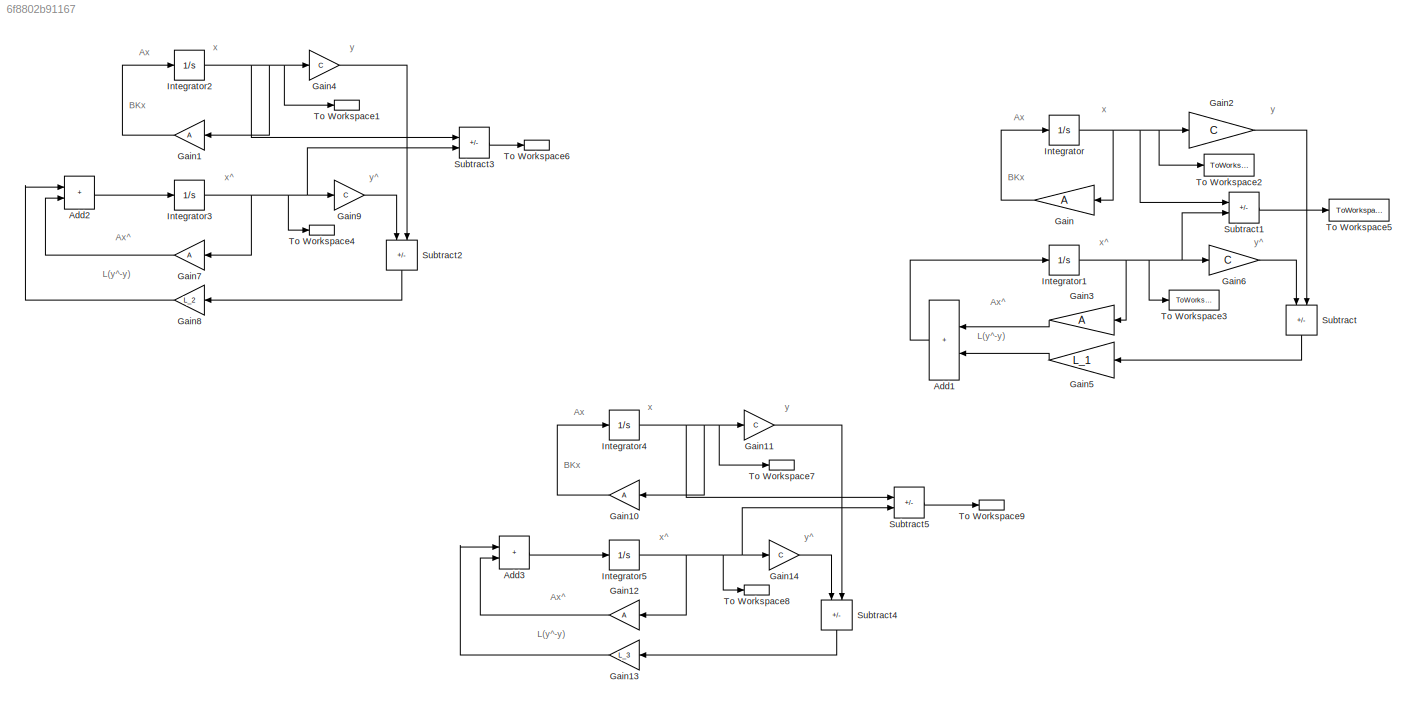
MODEL slx_6f8802b91167
KIND model
CONFIG AbsTol = auto
CONFIG EnableMultiTasking = off
CONFIG FixedStep = auto
CONFIG MaxStep = auto
CONFIG MinStep = auto
CONFIG RelTol = 1e-3
CONFIG SampleTimeConstraint = Unconstrained
CONFIG SolverName = VariableStepAuto
CONFIG StartTime = 0.0
CONFIG StopTime = 5
BLOCK [Sum] Add1
  IconShape = rectangular
  NameLocation = top
  Ports = [2, 1]
BLOCK [Sum] Add2
  IconShape = rectangular
  Ports = [2, 1]
BLOCK [Sum] Add3
  IconShape = rectangular
  Ports = [2, 1]
BLOCK [Gain] Gain
  Gain = A
  Multiplication = Matrix(K*u) (u vector)
  NameLocation = top
BLOCK [Gain] Gain1
  Gain = A
  Multiplication = Matrix(K*u) (u vector)
  NameLocation = top
BLOCK [Gain] Gain10
  Gain = A
  Multiplication = Matrix(K*u) (u vector)
  NameLocation = top
BLOCK [Gain] Gain11
  Gain = C
  Multiplication = Matrix(K*u) (u vector)
BLOCK [Gain] Gain12
  Gain = A
  Multiplication = Matrix(K*u) (u vector)
  NameLocation = top
BLOCK [Gain] Gain13
  Gain = L_3
  Multiplication = Matrix(K*u) (u vector)
  NameLocation = top
BLOCK [Gain] Gain14
  Gain = C
  Multiplication = Matrix(K*u) (u vector)
BLOCK [Gain] Gain2
  Gain = C
  Multiplication = Matrix(K*u) (u vector)
BLOCK [Gain] Gain3
  Gain = A
  Multiplication = Matrix(K*u) (u vector)
  NameLocation = top
BLOCK [Gain] Gain4
  Gain = C
  Multiplication = Matrix(K*u) (u vector)
BLOCK [Gain] Gain5
  Gain = L_1
  Multiplication = Matrix(K*u) (u vector)
  NameLocation = top
BLOCK [Gain] Gain6
  Gain = C
  Multiplication = Matrix(K*u) (u vector)
BLOCK [Gain] Gain7
  Gain = A
  Multiplication = Matrix(K*u) (u vector)
  NameLocation = top
BLOCK [Gain] Gain8
  Gain = L_2
  Multiplication = Matrix(K*u) (u vector)
  NameLocation = top
BLOCK [Gain] Gain9
  Gain = C
  Multiplication = Matrix(K*u) (u vector)
BLOCK [Integrator] Integrator
  InitialCondition = x0
  Ports = [1, 1]
BLOCK [Integrator] Integrator1
  InitialCondition = x_0
  Ports = [1, 1]
BLOCK [Integrator] Integrator2
  InitialCondition = x0
  Ports = [1, 1]
BLOCK [Integrator] Integrator3
  InitialCondition = x_0
  Ports = [1, 1]
BLOCK [Integrator] Integrator4
  InitialCondition = x0
  Ports = [1, 1]
BLOCK [Integrator] Integrator5
  InitialCondition = x_0
  Ports = [1, 1]
BLOCK [Sum] Subtract
  IconShape = rectangular
  Inputs = +-
  NameLocation = left
  Ports = [2, 1]
BLOCK [Sum] Subtract1
  IconShape = rectangular
  Inputs = +-
  Ports = [2, 1]
BLOCK [Sum] Subtract2
  IconShape = rectangular
  Inputs = +-
  NameLocation = left
  Ports = [2, 1]
BLOCK [Sum] Subtract3
  IconShape = rectangular
  Inputs = +-
  Ports = [2, 1]
BLOCK [Sum] Subtract4
  IconShape = rectangular
  Inputs = +-
  NameLocation = left
  Ports = [2, 1]
BLOCK [Sum] Subtract5
  IconShape = rectangular
  Inputs = +-
  Ports = [2, 1]
BLOCK [ToWorkspace] To Workspace1
  FixptAsFi = on
  MaxDataPoints = inf
  Ports = [1]
  SampleTime = 0.0001
  SaveFormat = Timeseries
  VariableName = x_2
BLOCK [ToWorkspace] To Workspace2
  FixptAsFi = on
  MaxDataPoints = inf
  Ports = [1]
  SampleTime = 0.0001
  SaveFormat = Timeseries
  VariableName = x_1
BLOCK [ToWorkspace] To Workspace3
  FixptAsFi = on
  MaxDataPoints = inf
  Ports = [1]
  SampleTime = -1
  SaveFormat = Timeseries
  VariableName = x_1_
BLOCK [ToWorkspace] To Workspace4
  FixptAsFi = on
  MaxDataPoints = inf
  Ports = [1]
  SampleTime = -1
  SaveFormat = Timeseries
  VariableName = x_2_
BLOCK [ToWorkspace] To Workspace5
  FixptAsFi = on
  MaxDataPoints = inf
  Ports = [1]
  SampleTime = -1
  SaveFormat = Timeseries
  VariableName = e_1
BLOCK [ToWorkspace] To Workspace6
  FixptAsFi = on
  MaxDataPoints = inf
  Ports = [1]
  SampleTime = -1
  SaveFormat = Timeseries
  VariableName = e_2
BLOCK [ToWorkspace] To Workspace7
  FixptAsFi = on
  MaxDataPoints = inf
  Ports = [1]
  SampleTime = 0.0001
  SaveFormat = Timeseries
  VariableName = x_3
BLOCK [ToWorkspace] To Workspace8
  FixptAsFi = on
  MaxDataPoints = inf
  Ports = [1]
  SampleTime = -1
  SaveFormat = Timeseries
  VariableName = x_3_
BLOCK [ToWorkspace] To Workspace9
  FixptAsFi = on
  MaxDataPoints = inf
  Ports = [1]
  SampleTime = -1
  SaveFormat = Timeseries
  VariableName = e_3
ANNOTATION (root): Ax
ANNOTATION (root): Ax^
ANNOTATION (root): BKx
ANNOTATION (root): L(y^-y)
ANNOTATION (root): x
ANNOTATION (root): x^
ANNOTATION (root): y
ANNOTATION (root): y^
LINE Add1:1 -> Integrator1:1
LINE Add2:1 -> Integrator3:1
LINE Add3:1 -> Integrator5:1
LINE Gain10:1 -> Integrator4:1
LINE Gain11:1 -> Subtract4:2
LINE Gain12:1 -> Add3:2
LINE Gain13:1 -> Add3:1
LINE Gain14:1 -> Subtract4:1
LINE Gain1:1 -> Integrator2:1
LINE Gain2:1 -> Subtract:2
LINE Gain3:1 -> Add1:1
LINE Gain4:1 -> Subtract2:2
LINE Gain5:1 -> Add1:2
LINE Gain6:1 -> Subtract:1
LINE Gain7:1 -> Add2:2
LINE Gain8:1 -> Add2:1
LINE Gain9:1 -> Subtract2:1
LINE Gain:1 -> Integrator:1
NET Integrator1:1 -> Gain3:1, Gain6:1, Subtract1:2, To Workspace3:1
NET Integrator2:1 -> Gain1:1, Gain4:1, Subtract3:1, To Workspace1:1
NET Integrator3:1 -> Gain7:1, Gain9:1, Subtract3:2, To Workspace4:1
NET Integrator4:1 -> Gain10:1, Gain11:1, Subtract5:1, To Workspace7:1
NET Integrator5:1 -> Gain12:1, Gain14:1, Subtract5:2, To Workspace8:1
NET Integrator:1 -> Gain2:1, Gain:1, Subtract1:1, To Workspace2:1
LINE Subtract1:1 -> To Workspace5:1
LINE Subtract2:1 -> Gain8:1
LINE Subtract3:1 -> To Workspace6:1
LINE Subtract4:1 -> Gain13:1
LINE Subtract5:1 -> To Workspace9:1
LINE Subtract:1 -> Gain5:1
note: NET lines group one-source signal fan-out (src -> all destinations, sorted); 1:1 wires keep LINE
